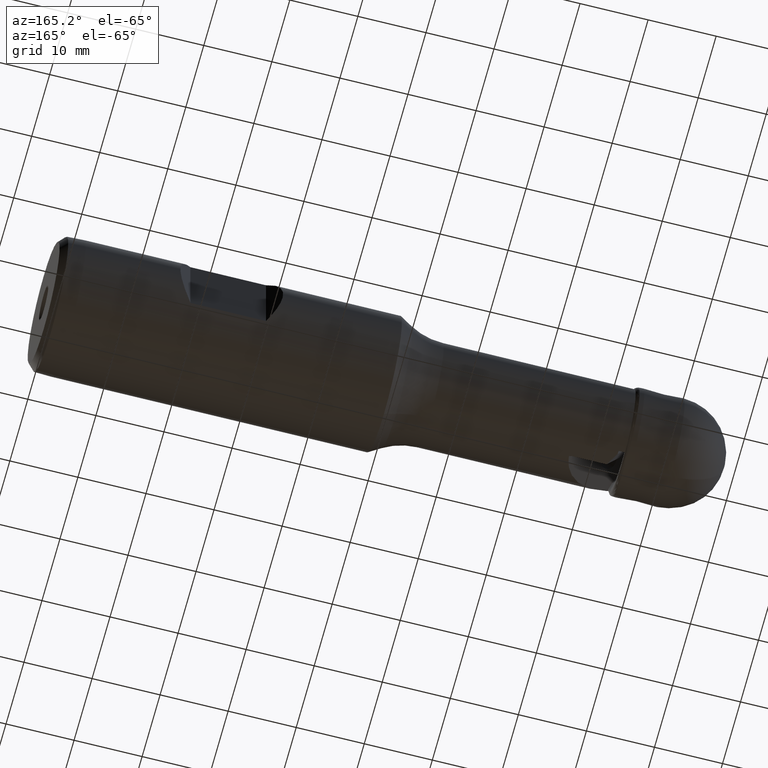
[diagram: clean part render]
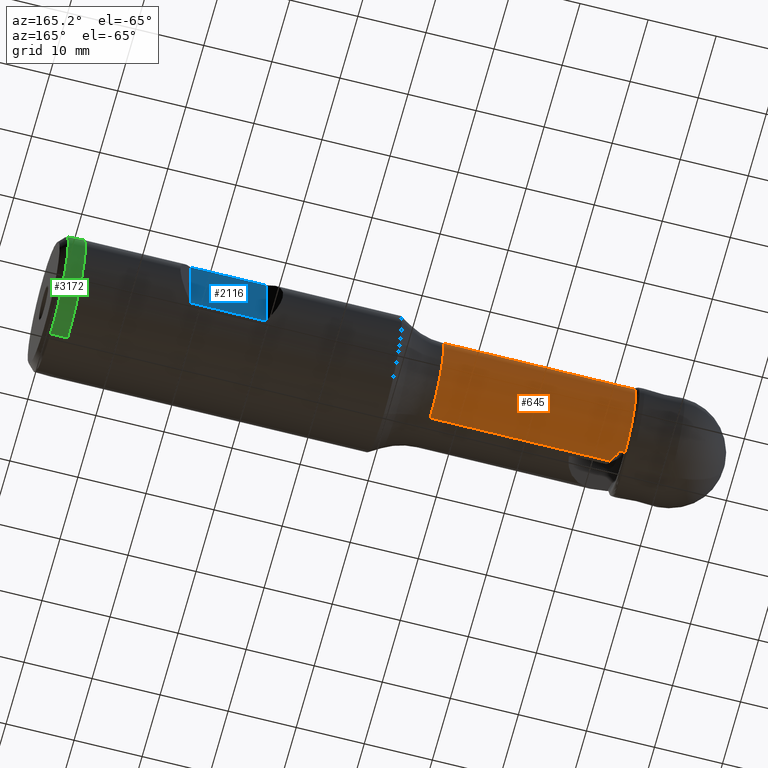
[diagram: same view with three faces highlighted in distinct colors, each labeled with its STEP entity id]
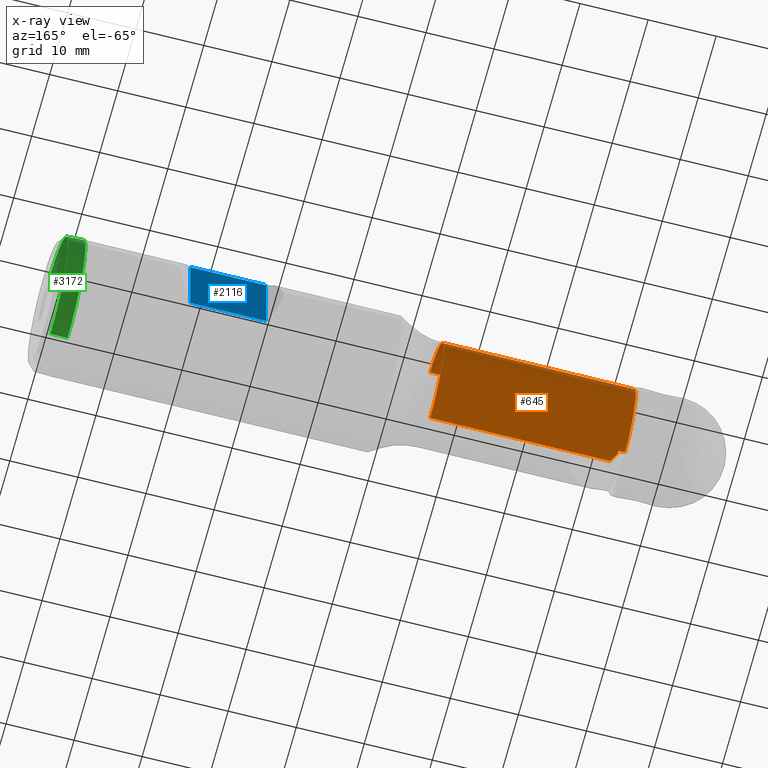
[diagram: x-ray of the same camera — body ghosted, the three highlighted faces saturated]
A machine part, auxiliary view with three faces highlighted in distinct colors.
The next image is the same camera in x-ray (body ghosted, the three faces saturated) — at least one of them is partly hidden behind the body in this view.
Their STEP definitions:

[orange] entity #645 — the highlighted cylindrical surface (partial cylindrical patch) has radius 7.642 mm, axis along (-1, 0, 0).
#1 = EDGE_CURVE ( 'NONE', #743, #2918, #2803, .T. ) ;
#18 = CARTESIAN_POINT ( 'NONE',  ( 22.16629019199653783, 0.7188708439498736613, 7.608133329428103053 ) ) ;
#46 = CARTESIAN_POINT ( 'NONE',  ( 22.21315810550782288, 0.8409774400000000760, 7.595557314327445297 ) ) ;
#64 = ORIENTED_EDGE ( 'NONE', *, *, #3234, .T. ) ;
#79 = B_SPLINE_CURVE_WITH_KNOTS ( 'NONE', 3,
 ( #2870, #612, #2641, #18, #3210, #3143, #2666, #1905 ),
 .UNSPECIFIED., .F., .F.,
 ( 4, 2, 2, 4 ),
 ( 8.673617379884035472E-19, 0.0001012807757651527381, 0.0002025615515303046089, 0.0004051231030606173493 ),
 .UNSPECIFIED. ) ;
#106 = EDGE_CURVE ( 'NONE', #2148, #919, #2760, .T. ) ;
#183 =( BOUNDED_CURVE ( )  B_SPLINE_CURVE ( 3, ( #2222, #2743, #472, #1468 ),
 .UNSPECIFIED., .F., .T. ) 
 B_SPLINE_CURVE_WITH_KNOTS ( ( 4, 4 ),
 ( 2.448173529267079207, 2.532148111352194864 ),
 .UNSPECIFIED. ) 
 CURVE ( )  GEOMETRIC_REPRESENTATION_ITEM ( )  RATIONAL_B_SPLINE_CURVE ( ( 1.000000000000000000, 0.9994124421233234745, 0.9994124421233234745, 1.000000000000000000 ) ) 
 REPRESENTATION_ITEM ( '' )  );
#233 = DIRECTION ( 'NONE',  ( 0.0000000000000000000, 0.0000000000000000000, 1.000000000000000000 ) ) ;
#251 = CARTESIAN_POINT ( 'NONE',  ( 16.34832894466443776, 1.260851669999999869, -7.537240014493389317 ) ) ;
#268 = ORIENTED_EDGE ( 'NONE', *, *, #544, .T. ) ;
#316 = VERTEX_POINT ( 'NONE', #555 ) ;
#320 = EDGE_CURVE ( 'NONE', #1413, #2918, #1035, .T. ) ;
#337 = VECTOR ( 'NONE', #2046, 1000.000000000000000 ) ;
#372 = VERTEX_POINT ( 'NONE', #2452 ) ;
#394 = CARTESIAN_POINT ( 'NONE',  ( 22.21315810550782288, 0.8409774400000000760, 7.595557314327445297 ) ) ;
#397 = ORIENTED_EDGE ( 'NONE', *, *, #320, .T. ) ;
#420 = VERTEX_POINT ( 'NONE', #394 ) ;
#472 = CARTESIAN_POINT ( 'NONE',  ( 16.56333318502235841, 0.4277580977519249150, 7.632990342580813881 ) ) ;
#489 = CARTESIAN_POINT ( 'NONE',  ( 17.08825347675513484, 9.358716382394043170E-16, -7.641971863977390811 ) ) ;
#491 = DIRECTION ( 'NONE',  ( 0.0000000000000000000, 0.0000000000000000000, 1.000000000000000000 ) ) ;
#514 = DIRECTION ( 'NONE',  ( 1.000000000000000000, 0.0000000000000000000, 0.0000000000000000000 ) ) ;
#529 = DIRECTION ( 'NONE',  ( -1.000000000000000000, 0.0000000000000000000, 0.0000000000000000000 ) ) ;
#542 =( BOUNDED_CURVE ( )  B_SPLINE_CURVE ( 3, ( #603, #2629, #3133, #865 ),
 .UNSPECIFIED., .F., .T. ) 
 B_SPLINE_CURVE_WITH_KNOTS ( ( 4, 4 ),
 ( 2.909084923276949564, 2.975844418752352283 ),
 .UNSPECIFIED. ) 
 CURVE ( )  GEOMETRIC_REPRESENTATION_ITEM ( )  RATIONAL_B_SPLINE_CURVE ( ( 1.000000000000000000, 0.9996286319639995366, 0.9996286319639995366, 1.000000000000000000 ) ) 
 REPRESENTATION_ITEM ( '' )  );
#544 = EDGE_CURVE ( 'NONE', #3042, #3273, #2261, .T. ) ;
#548 = EDGE_CURVE ( 'NONE', #3058, #372, #1722, .T. ) ;
#555 = CARTESIAN_POINT ( 'NONE',  ( 16.28993265539686064, 1.760851670000000313, -7.436338841532188049 ) ) ;
#565 = CIRCLE ( 'NONE', #664, 7.641971863977390811 ) ;
#603 = CARTESIAN_POINT ( 'NONE',  ( 16.28993265539686064, 1.760851670000000313, -7.436338841532188049 ) ) ;
#612 = CARTESIAN_POINT ( 'NONE',  ( 22.21798102382278017, 0.8071890478465512109, 7.599298353247834648 ) ) ;
#645 = ADVANCED_FACE ( 'NONE', ( #2023 ), #1225, .T. ) ;
#664 = AXIS2_PLACEMENT_3D ( 'NONE', #3027, #763, #1758 ) ;
#743 = VERTEX_POINT ( 'NONE', #1094 ) ;
#763 = DIRECTION ( 'NONE',  ( -1.000000000000000000, 0.0000000000000000000, 0.0000000000000000000 ) ) ;
#778 = CARTESIAN_POINT ( 'NONE',  ( 16.61330834873739803, 0.8439462039543449423, -7.606981186604799383 ) ) ;
#865 = CARTESIAN_POINT ( 'NONE',  ( 16.34832894466443776, 1.260851669999999869, -7.537240014493389317 ) ) ;
#919 = VERTEX_POINT ( 'NONE', #1253 ) ;
#953 = EDGE_CURVE ( 'NONE', #919, #3273, #183, .T. ) ;
#959 = CARTESIAN_POINT ( 'NONE',  ( -4.762142644779060241, 0.0000000000000000000, 0.0000000000000000000 ) ) ;
#1035 = LINE ( 'NONE', #2129, #2374 ) ;
#1094 = CARTESIAN_POINT ( 'NONE',  ( 16.34832894466443776, 1.260851669999999869, -7.537240014493389317 ) ) ;
#1130 = CARTESIAN_POINT ( 'NONE',  ( 16.67128163081617487, 0.6409774400000004535, 7.615043131278585342 ) ) ;
#1171 = CARTESIAN_POINT ( 'NONE',  ( 17.08825347675513484, 9.358716382394043170E-16, -7.641971863977390811 ) ) ;
#1225 = CYLINDRICAL_SURFACE ( 'NONE', #1799, 7.641971863977390811 ) ;
#1253 = CARTESIAN_POINT ( 'NONE',  ( 16.32845106303067695, 0.0000000000000000000, 7.641971863977390811 ) ) ;
#1258 = CARTESIAN_POINT ( 'NONE',  ( 15.34664309343302158, 0.0000000000000000000, 0.0000000000000000000 ) ) ;
#1275 = CARTESIAN_POINT ( 'NONE',  ( -4.762142644779060241, 0.0000000000000000000, 7.641971863977390811 ) ) ;
#1312 = ORIENTED_EDGE ( 'NONE', *, *, #1376, .F. ) ;
#1331 = ORIENTED_EDGE ( 'NONE', *, *, #1668, .T. ) ;
#1338 = CARTESIAN_POINT ( 'NONE',  ( 19.20060639061096097, 6.367573070476201913, 5.258782673104603234 ) ) ;
#1376 = EDGE_CURVE ( 'NONE', #316, #743, #542, .T. ) ;
#1413 = VERTEX_POINT ( 'NONE', #2142 ) ;
#1468 = CARTESIAN_POINT ( 'NONE',  ( 16.67128163081617487, 0.6409774400000004535, 7.615043131278585342 ) ) ;
#1543 =( BOUNDED_CURVE ( )  B_SPLINE_CURVE ( 3, ( #2068, #1338, #2353, #46 ),
 .UNSPECIFIED., .F., .T. ) 
 B_SPLINE_CURVE_WITH_KNOTS ( ( 4, 4 ),
 ( 1.872301365061393996, 3.031322137168667830 ),
 .UNSPECIFIED. ) 
 CURVE ( )  GEOMETRIC_REPRESENTATION_ITEM ( )  RATIONAL_B_SPLINE_CURVE ( ( 1.000000000000000000, 0.8911539132051263801, 0.8911539132051263801, 1.000000000000000000 ) ) 
 REPRESENTATION_ITEM ( '' )  );
#1612 = VECTOR ( 'NONE', #2747, 1000.000000000000000 ) ;
#1668 = EDGE_CURVE ( 'NONE', #372, #420, #1543, .T. ) ;
#1722 = CIRCLE ( 'NONE', #3238, 7.641971863977390811 ) ;
#1728 = ORIENTED_EDGE ( 'NONE', *, *, #953, .F. ) ;
#1744 = CARTESIAN_POINT ( 'NONE',  ( 15.34664309343294342, 1.760851669999999869, -7.436338841532343480 ) ) ;
#1758 = DIRECTION ( 'NONE',  ( 0.0000000000000000000, 0.0000000000000000000, 1.000000000000000000 ) ) ;
#1799 = AXIS2_PLACEMENT_3D ( 'NONE', #959, #2518, #233 ) ;
#1853 = DIRECTION ( 'NONE',  ( -1.000000000000000000, 0.0000000000000000000, 0.0000000000000000000 ) ) ;
#1905 = CARTESIAN_POINT ( 'NONE',  ( 21.91196531784846258, 0.6409774400000002315, 7.615043131278584454 ) ) ;
#1967 = CARTESIAN_POINT ( 'NONE',  ( -4.762142644779060241, 0.6409774400000002315, 7.615043131278582678 ) ) ;
#2023 = FACE_OUTER_BOUND ( 'NONE', #3259, .T. ) ;
#2025 = CARTESIAN_POINT ( 'NONE',  ( 21.91196531784846258, 0.6409774400000002315, 7.615043131278584454 ) ) ;
#2046 = DIRECTION ( 'NONE',  ( -1.000000000000000000, 0.0000000000000000000, 0.0000000000000000000 ) ) ;
#2068 = CARTESIAN_POINT ( 'NONE',  ( 15.34664309343302158, 7.297247389448783039, 2.269342307146498872 ) ) ;
#2129 = CARTESIAN_POINT ( 'NONE',  ( -4.762142644779060241, 9.358716382394043170E-16, -7.641971863977390811 ) ) ;
#2142 = CARTESIAN_POINT ( 'NONE',  ( 43.55316572022799448, 9.358716382394043170E-16, -7.641971863977390811 ) ) ;
#2148 = VERTEX_POINT ( 'NONE', #2796 ) ;
#2166 = ORIENTED_EDGE ( 'NONE', *, *, #2766, .T. ) ;
#2222 = CARTESIAN_POINT ( 'NONE',  ( 16.32845106303067695, 0.0000000000000000000, 7.641971863977390811 ) ) ;
#2261 = LINE ( 'NONE', #1967, #1612 ) ;
#2353 = CARTESIAN_POINT ( 'NONE',  ( 21.76900484955530857, 3.952625493789498456, 7.251036733919107746 ) ) ;
#2374 = VECTOR ( 'NONE', #1853, 1000.000000000000000 ) ;
#2452 = CARTESIAN_POINT ( 'NONE',  ( 15.34664309343302158, 7.297247389448783039, 2.269342307146498872 ) ) ;
#2518 = DIRECTION ( 'NONE',  ( -1.000000000000000000, 0.0000000000000000000, 0.0000000000000000000 ) ) ;
#2557 = ORIENTED_EDGE ( 'NONE', *, *, #3094, .T. ) ;
#2629 = CARTESIAN_POINT ( 'NONE',  ( 16.31261480769070005, 1.595338855934486544, -7.475530642936655923 ) ) ;
#2641 = CARTESIAN_POINT ( 'NONE',  ( 22.20705880472820581, 0.7727999288252901389, 7.602844751712584781 ) ) ;
#2666 = CARTESIAN_POINT ( 'NONE',  ( 21.97979894099206177, 0.6409774399999973449, 7.615043131278583566 ) ) ;
#2719 = ORIENTED_EDGE ( 'NONE', *, *, #1, .F. ) ;
#2738 = LINE ( 'NONE', #3051, #337 ) ;
#2743 = CARTESIAN_POINT ( 'NONE',  ( 16.44898914535270151, 0.2139733401670252388, 7.641971863977391699 ) ) ;
#2747 = DIRECTION ( 'NONE',  ( -1.000000000000000000, 0.0000000000000000000, 0.0000000000000000000 ) ) ;
#2760 = LINE ( 'NONE', #1275, #3165 ) ;
#2766 = EDGE_CURVE ( 'NONE', #316, #3058, #2738, .T. ) ;
#2796 = CARTESIAN_POINT ( 'NONE',  ( 43.55316572022799448, 0.0000000000000000000, 7.641971863977390811 ) ) ;
#2798 = CARTESIAN_POINT ( 'NONE',  ( 16.86051548496205399, 0.4226984725619639116, -7.641971863977390811 ) ) ;
#2803 =( BOUNDED_CURVE ( )  B_SPLINE_CURVE ( 3, ( #251, #778, #2798, #489 ),
 .UNSPECIFIED., .F., .T. ) 
 B_SPLINE_CURVE_WITH_KNOTS ( ( 4, 4 ),
 ( 2.226202779299113033, 2.391951014136554754 ),
 .UNSPECIFIED. ) 
 CURVE ( )  GEOMETRIC_REPRESENTATION_ITEM ( )  RATIONAL_B_SPLINE_CURVE ( ( 1.000000000000000000, 0.9977119368947267031, 0.9977119368947267031, 1.000000000000000000 ) ) 
 REPRESENTATION_ITEM ( '' )  );
#2870 = CARTESIAN_POINT ( 'NONE',  ( 22.21315810550782288, 0.8409774400000000760, 7.595557314327445297 ) ) ;
#2918 = VERTEX_POINT ( 'NONE', #1171 ) ;
#3027 = CARTESIAN_POINT ( 'NONE',  ( 43.55316572022799448, 0.0000000000000000000, 0.0000000000000000000 ) ) ;
#3042 = VERTEX_POINT ( 'NONE', #2025 ) ;
#3051 = CARTESIAN_POINT ( 'NONE',  ( -4.762142644779060241, 1.760851670000000313, -7.436338841532188049 ) ) ;
#3058 = VERTEX_POINT ( 'NONE', #1744 ) ;
#3094 = EDGE_CURVE ( 'NONE', #2148, #1413, #565, .T. ) ;
#3133 = CARTESIAN_POINT ( 'NONE',  ( 16.33208746897053132, 1.428610271600911030, -7.509176862387492157 ) ) ;
#3143 = CARTESIAN_POINT ( 'NONE',  ( 22.04794022033827261, 0.6528933128949202525, 7.614092100471766322 ) ) ;
#3165 = VECTOR ( 'NONE', #529, 1000.000000000000000 ) ;
#3166 = ORIENTED_EDGE ( 'NONE', *, *, #548, .T. ) ;
#3188 = ORIENTED_EDGE ( 'NONE', *, *, #106, .F. ) ;
#3210 = CARTESIAN_POINT ( 'NONE',  ( 22.13807842851725383, 0.6985572369627142120, 7.609992464660184197 ) ) ;
#3234 = EDGE_CURVE ( 'NONE', #420, #3042, #79, .T. ) ;
#3238 = AXIS2_PLACEMENT_3D ( 'NONE', #1258, #514, #491 ) ;
#3259 = EDGE_LOOP ( 'NONE', ( #2557, #397, #2719, #1312, #2166, #3166, #1331, #64, #268, #1728, #3188 ) ) ;
#3273 = VERTEX_POINT ( 'NONE', #1130 ) ;

[blue] entity #2116 — the highlighted planar face has unit normal (0, -1, 0).
#69 = VERTEX_POINT ( 'NONE', #3020 ) ;
#80 = ORIENTED_EDGE ( 'NONE', *, *, #2834, .F. ) ;
#114 = CARTESIAN_POINT ( 'NONE',  ( 80.86688218180732690, 7.999999999999998224, -6.000000000000002665 ) ) ;
#221 = VECTOR ( 'NONE', #2858, 1000.000000000000000 ) ;
#444 = EDGE_CURVE ( 'NONE', #2359, #69, #3189, .T. ) ;
#474 = DIRECTION ( 'NONE',  ( 0.0000000000000000000, -1.000000000000000000, 0.0000000000000000000 ) ) ;
#509 = EDGE_CURVE ( 'NONE', #69, #1327, #2178, .T. ) ;
#897 = LINE ( 'NONE', #1643, #2836 ) ;
#1091 = FACE_OUTER_BOUND ( 'NONE', #1727, .T. ) ;
#1121 = CARTESIAN_POINT ( 'NONE',  ( 69.76688218180734680, 7.999999999999998224, 6.000000000000003553 ) ) ;
#1223 = DIRECTION ( 'NONE',  ( 0.0000000000000000000, 0.0000000000000000000, -1.000000000000000000 ) ) ;
#1327 = VERTEX_POINT ( 'NONE', #1121 ) ;
#1410 = VECTOR ( 'NONE', #1412, 1000.000000000000000 ) ;
#1412 = DIRECTION ( 'NONE',  ( 0.0000000000000000000, 0.0000000000000000000, 1.000000000000000000 ) ) ;
#1565 = VECTOR ( 'NONE', #3255, 1000.000000000000000 ) ;
#1643 = CARTESIAN_POINT ( 'NONE',  ( 69.76688218180731837, 7.999999999999998224, -9.999999999999996447 ) ) ;
#1689 = CARTESIAN_POINT ( 'NONE',  ( 80.86688218180732690, 7.999999999999998224, -10.00000000000000000 ) ) ;
#1724 = CARTESIAN_POINT ( 'NONE',  ( -4.762142644779060241, 7.999999999999998224, 6.000000000000002665 ) ) ;
#1727 = EDGE_LOOP ( 'NONE', ( #2431, #80, #2018, #2504 ) ) ;
#1830 = CARTESIAN_POINT ( 'NONE',  ( -4.762142644779060241, 7.999999999999998224, -6.000000000000002665 ) ) ;
#2018 = ORIENTED_EDGE ( 'NONE', *, *, #2671, .T. ) ;
#2081 = LINE ( 'NONE', #1830, #221 ) ;
#2116 = ADVANCED_FACE ( 'NONE', ( #1091 ), #2973, .F. ) ;
#2178 = LINE ( 'NONE', #1724, #1565 ) ;
#2359 = VERTEX_POINT ( 'NONE', #114 ) ;
#2431 = ORIENTED_EDGE ( 'NONE', *, *, #444, .F. ) ;
#2504 = ORIENTED_EDGE ( 'NONE', *, *, #509, .F. ) ;
#2639 = VERTEX_POINT ( 'NONE', #2914 ) ;
#2671 = EDGE_CURVE ( 'NONE', #2639, #1327, #897, .T. ) ;
#2672 = DIRECTION ( 'NONE',  ( 0.0000000000000000000, 0.0000000000000000000, 1.000000000000000000 ) ) ;
#2730 = AXIS2_PLACEMENT_3D ( 'NONE', #3004, #474, #1223 ) ;
#2834 = EDGE_CURVE ( 'NONE', #2639, #2359, #2081, .T. ) ;
#2836 = VECTOR ( 'NONE', #2672, 1000.000000000000000 ) ;
#2858 = DIRECTION ( 'NONE',  ( 1.000000000000000000, -0.0000000000000000000, -0.0000000000000000000 ) ) ;
#2914 = CARTESIAN_POINT ( 'NONE',  ( 69.76688218180731837, 7.999999999999998224, -6.000000000000002665 ) ) ;
#2973 = PLANE ( 'NONE',  #2730 ) ;
#3004 = CARTESIAN_POINT ( 'NONE',  ( 69.76688218180731837, 7.999999999999998224, -9.999999999999996447 ) ) ;
#3020 = CARTESIAN_POINT ( 'NONE',  ( 80.86688218180734111, 7.999999999999998224, 6.000000000000003553 ) ) ;
#3189 = LINE ( 'NONE', #1689, #1410 ) ;
#3255 = DIRECTION ( 'NONE',  ( -1.000000000000000000, 0.0000000000000000000, 0.0000000000000000000 ) ) ;

[green] entity #3172 — the highlighted conical surface has half-angle 2.291 deg.
#169 = CONICAL_SURFACE ( 'NONE', #2030, 9.899999999999991473, 0.03997868712329322866 ) ;
#215 = EDGE_LOOP ( 'NONE', ( #756, #3167, #2646, #418 ) ) ;
#278 = CARTESIAN_POINT ( 'NONE',  ( 99.31688218180731553, 1.212400331155878716E-15, -9.899999999999991473 ) ) ;
#396 = EDGE_CURVE ( 'NONE', #449, #996, #1832, .T. ) ;
#418 = ORIENTED_EDGE ( 'NONE', *, *, #848, .F. ) ;
#449 = VERTEX_POINT ( 'NONE', #2731 ) ;
#597 = DIRECTION ( 'NONE',  ( 0.0000000000000000000, 0.0000000000000000000, 1.000000000000000000 ) ) ;
#643 = CARTESIAN_POINT ( 'NONE',  ( 99.31688218180731553, 0.0000000000000000000, 0.0000000000000000000 ) ) ;
#756 = ORIENTED_EDGE ( 'NONE', *, *, #396, .T. ) ;
#757 = LINE ( 'NONE', #1520, #2653 ) ;
#815 = CARTESIAN_POINT ( 'NONE',  ( 99.31688218180731553, 0.0000000000000000000, 0.0000000000000000000 ) ) ;
#848 = EDGE_CURVE ( 'NONE', #449, #1500, #757, .T. ) ;
#996 = VERTEX_POINT ( 'NONE', #278 ) ;
#1131 = AXIS2_PLACEMENT_3D ( 'NONE', #1809, #1352, #597 ) ;
#1158 = CARTESIAN_POINT ( 'NONE',  ( 99.31688218180731553, 1.212400331155878716E-15, -9.899999999999991473 ) ) ;
#1180 = DIRECTION ( 'NONE',  ( 0.0000000000000000000, 0.0000000000000000000, 1.000000000000000000 ) ) ;
#1352 = DIRECTION ( 'NONE',  ( -1.000000000000000000, 0.0000000000000000000, 0.0000000000000000000 ) ) ;
#1458 = DIRECTION ( 'NONE',  ( -1.000000000000000000, 0.0000000000000000000, 0.0000000000000000000 ) ) ;
#1500 = VERTEX_POINT ( 'NONE', #1502 ) ;
#1502 = CARTESIAN_POINT ( 'NONE',  ( 96.81688218180731553, 0.0000000000000000000, 10.00000000000000000 ) ) ;
#1520 = CARTESIAN_POINT ( 'NONE',  ( 99.31688218180731553, 0.0000000000000000000, 9.899999999999991473 ) ) ;
#1809 = CARTESIAN_POINT ( 'NONE',  ( 96.81688218180731553, 0.0000000000000000000, 0.0000000000000000000 ) ) ;
#1832 = CIRCLE ( 'NONE', #2371, 9.899999999999991473 ) ;
#1946 = LINE ( 'NONE', #1158, #2187 ) ;
#2030 = AXIS2_PLACEMENT_3D ( 'NONE', #815, #2840, #2623 ) ;
#2097 = FACE_OUTER_BOUND ( 'NONE', #215, .T. ) ;
#2168 = DIRECTION ( 'NONE',  ( -0.9992009587217893785, 4.894673023214814355E-18, -0.03996803834887475981 ) ) ;
#2187 = VECTOR ( 'NONE', #2168, 999.9999999999998863 ) ;
#2371 = AXIS2_PLACEMENT_3D ( 'NONE', #643, #1458, #1180 ) ;
#2456 = CARTESIAN_POINT ( 'NONE',  ( 96.81688218180731553, 1.224646799147353256E-15, -10.00000000000000000 ) ) ;
#2513 = DIRECTION ( 'NONE',  ( -0.9992009587217893785, 0.0000000000000000000, 0.03996803834887475981 ) ) ;
#2576 = CIRCLE ( 'NONE', #1131, 10.00000000000000000 ) ;
#2613 = EDGE_CURVE ( 'NONE', #996, #2961, #1946, .T. ) ;
#2623 = DIRECTION ( 'NONE',  ( 0.0000000000000000000, 0.0000000000000000000, 1.000000000000000000 ) ) ;
#2646 = ORIENTED_EDGE ( 'NONE', *, *, #3113, .F. ) ;
#2653 = VECTOR ( 'NONE', #2513, 999.9999999999998863 ) ;
#2731 = CARTESIAN_POINT ( 'NONE',  ( 99.31688218180731553, 0.0000000000000000000, 9.899999999999991473 ) ) ;
#2840 = DIRECTION ( 'NONE',  ( -1.000000000000000000, 0.0000000000000000000, 0.0000000000000000000 ) ) ;
#2961 = VERTEX_POINT ( 'NONE', #2456 ) ;
#3113 = EDGE_CURVE ( 'NONE', #1500, #2961, #2576, .T. ) ;
#3167 = ORIENTED_EDGE ( 'NONE', *, *, #2613, .T. ) ;
#3172 = ADVANCED_FACE ( 'NONE', ( #2097 ), #169, .T. ) ;